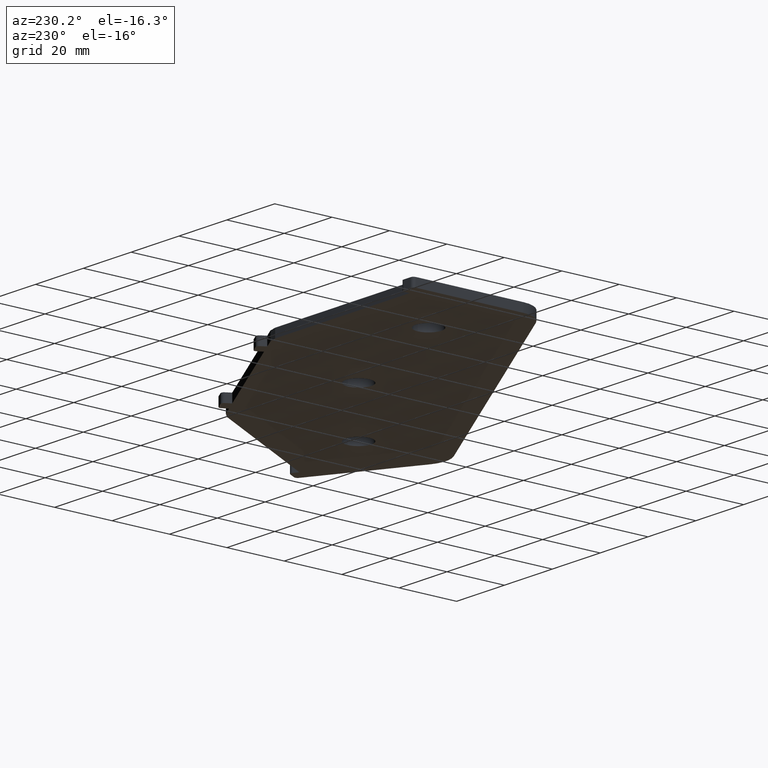
[diagram: clean part render]
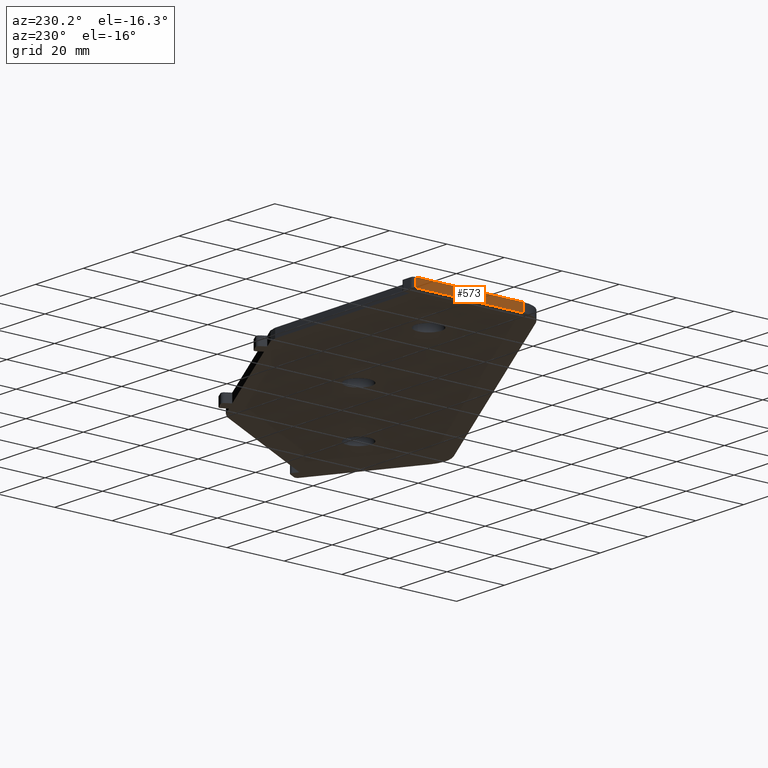
[diagram: same view with one face highlighted and labeled with its STEP entity id]
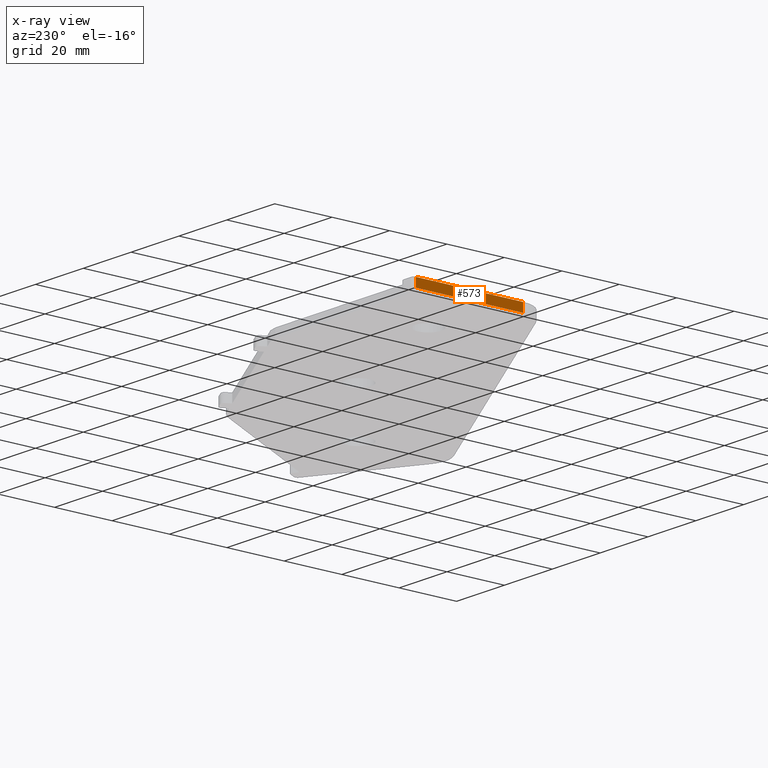
[diagram: x-ray of the same camera — body ghosted, the highlighted face saturated]
A machine part, auxiliary view. The second image highlights one B-rep face of the part: STEP entity #573.
The next image is the same camera in x-ray: the body ghosted, the highlighted face saturated — about 0% of this face is hidden behind the body in this view.
In plain terms, the highlighted planar face has unit normal (-1, 0, 0).
Its self-contained STEP definition (entity closure, byte-faithful):
#32 = LINE ( 'NONE', #1024, #1391 ) ;
#40 = DIRECTION ( 'NONE',  ( 0.000000000000000000, -1.000000000000000000, -0.000000000000000000 ) ) ;
#66 = VERTEX_POINT ( 'NONE', #1088 ) ;
#115 = DIRECTION ( 'NONE',  ( -0.000000000000000000, -0.000000000000000000, -1.000000000000000000 ) ) ;
#137 = VECTOR ( 'NONE', #744, 1000.000000000000000 ) ;
#171 = VERTEX_POINT ( 'NONE', #445 ) ;
#218 = EDGE_CURVE ( 'NONE', #171, #440, #32, .T. ) ;
#312 = CARTESIAN_POINT ( 'NONE',  ( 525.0000000000000000, 1055.973642330771554, 1260.499999999999545 ) ) ;
#314 = CARTESIAN_POINT ( 'NONE',  ( 525.0000000000000000, 1091.305264068951146, 1257.499999999999545 ) ) ;
#322 = VECTOR ( 'NONE', #783, 1000.000000000000000 ) ;
#353 = CARTESIAN_POINT ( 'NONE',  ( 525.0000000000000000, 1093.305264068951146, 1257.499999999999545 ) ) ;
#359 = ORIENTED_EDGE ( 'NONE', *, *, #600, .F. ) ;
#440 = VERTEX_POINT ( 'NONE', #312 ) ;
#445 = CARTESIAN_POINT ( 'NONE',  ( 525.0000000000000000, 1093.305264068951146, 1260.499999999999545 ) ) ;
#558 = EDGE_LOOP ( 'NONE', ( #359, #909, #1072, #968 ) ) ;
#559 = CARTESIAN_POINT ( 'NONE',  ( 525.0000000000000000, 1091.305264068951146, 1257.499999999999545 ) ) ;
#573 = ADVANCED_FACE ( 'NONE', ( #1321 ), #1437, .T. ) ;
#600 = EDGE_CURVE ( 'NONE', #440, #816, #1108, .T. ) ;
#661 = CARTESIAN_POINT ( 'NONE',  ( 525.0000000000000000, 1055.973642330771554, 1257.499999999999545 ) ) ;
#744 = DIRECTION ( 'NONE',  ( 0.000000000000000000, -1.000000000000000000, 0.000000000000000000 ) ) ;
#783 = DIRECTION ( 'NONE',  ( -0.000000000000000000, -0.000000000000000000, -1.000000000000000000 ) ) ;
#816 = VERTEX_POINT ( 'NONE', #1267 ) ;
#854 = LINE ( 'NONE', #314, #137 ) ;
#861 = AXIS2_PLACEMENT_3D ( 'NONE', #559, #1095, #1118 ) ;
#909 = ORIENTED_EDGE ( 'NONE', *, *, #218, .F. ) ;
#968 = ORIENTED_EDGE ( 'NONE', *, *, #1020, .T. ) ;
#1020 = EDGE_CURVE ( 'NONE', #66, #816, #854, .T. ) ;
#1024 = CARTESIAN_POINT ( 'NONE',  ( 525.0000000000000000, 0.000000000000000000, 1260.499999999999545 ) ) ;
#1072 = ORIENTED_EDGE ( 'NONE', *, *, #1180, .T. ) ;
#1088 = CARTESIAN_POINT ( 'NONE',  ( 525.0000000000000000, 1093.305264068951146, 1257.499999999999545 ) ) ;
#1095 = DIRECTION ( 'NONE',  ( -1.000000000000000000, 0.000000000000000000, 0.000000000000000000 ) ) ;
#1108 = LINE ( 'NONE', #661, #1148 ) ;
#1118 = DIRECTION ( 'NONE',  ( 0.000000000000000000, -1.000000000000000000, 0.000000000000000000 ) ) ;
#1148 = VECTOR ( 'NONE', #115, 1000.000000000000000 ) ;
#1180 = EDGE_CURVE ( 'NONE', #171, #66, #1346, .T. ) ;
#1267 = CARTESIAN_POINT ( 'NONE',  ( 525.0000000000000000, 1055.973642330771554, 1257.499999999999545 ) ) ;
#1321 = FACE_OUTER_BOUND ( 'NONE', #558, .T. ) ;
#1346 = LINE ( 'NONE', #353, #322 ) ;
#1391 = VECTOR ( 'NONE', #40, 1000.000000000000000 ) ;
#1437 = PLANE ( 'NONE',  #861 ) ;